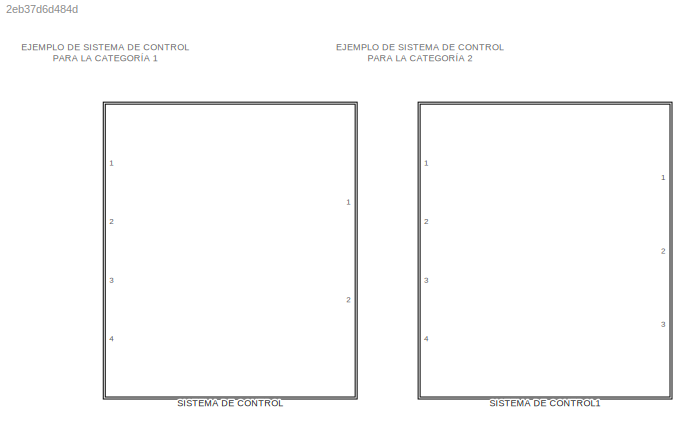
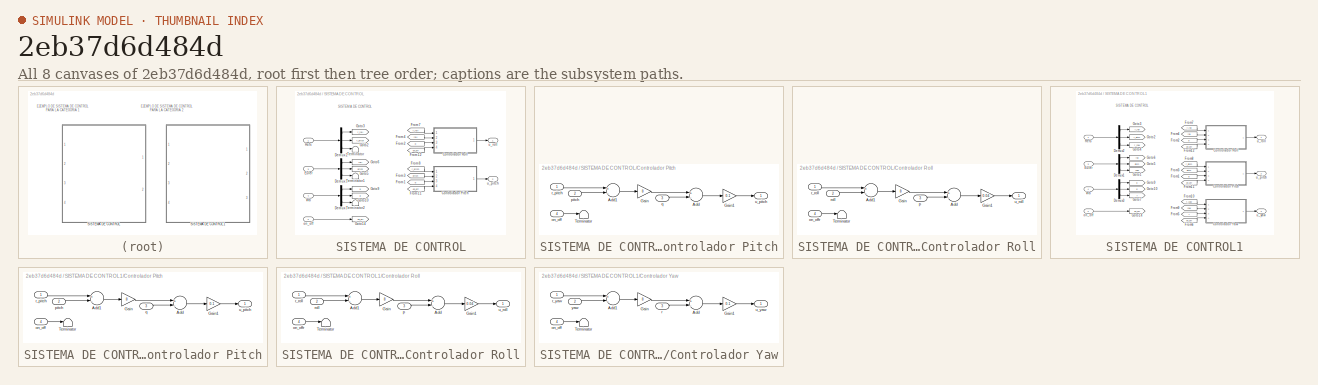
[diagram: thumbnail index - all 8 canvases of the model, root first then tree order]
MODEL slx_2eb37d6d484d
KIND model
CONFIG AbsTol = auto
CONFIG EnableMultiTasking = off
CONFIG FixedStep = auto
CONFIG MaxStep = auto
CONFIG MinStep = auto
CONFIG RelTol = 1e-3
CONFIG SampleTimeConstraint = Unconstrained
CONFIG Solver = VariableStepAuto
CONFIG SolverName = VariableStepAuto
CONFIG StartTime = 0.0
CONFIG StopTime = 10.0
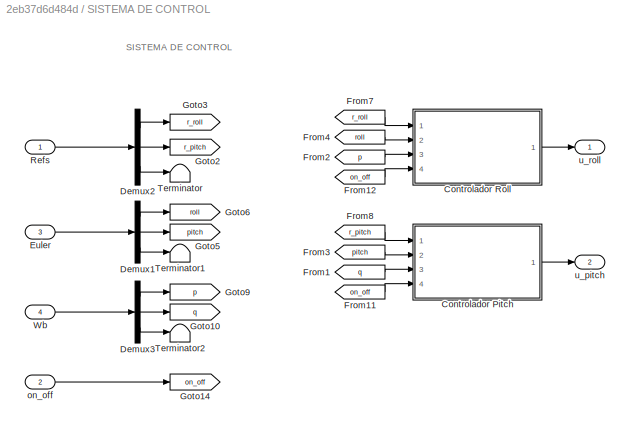
BLOCK [SubSystem] SISTEMA DE CONTROL
  Ports = [4, 2]
  RequestExecContextInheritance = off
BLOCK [SubSystem] SISTEMA DE CONTROL/Controlador Pitch
  Ports = [4, 1]
  RequestExecContextInheritance = off
BLOCK [Sum] SISTEMA DE CONTROL/Controlador Pitch/Add
  InputSameDT = off
  Inputs = +-
  OutDataTypeStr = Inherit: Inherit via internal rule
  Ports = [2, 1]
  SaturateOnIntegerOverflow = off
BLOCK [Sum] SISTEMA DE CONTROL/Controlador Pitch/Add1
  InputSameDT = off
  Inputs = +-
  OutDataTypeStr = Inherit: Inherit via internal rule
  Ports = [2, 1]
  SaturateOnIntegerOverflow = off
BLOCK [Gain] SISTEMA DE CONTROL/Controlador Pitch/Gain
  Gain = 8
  OutDataTypeStr = Inherit: Inherit via internal rule
  ParamDataTypeStr = Inherit: Inherit via internal rule
  SaturateOnIntegerOverflow = off
BLOCK [Gain] SISTEMA DE CONTROL/Controlador Pitch/Gain1
  Gain = 0.1
  OutDataTypeStr = Inherit: Inherit via internal rule
  ParamDataTypeStr = Inherit: Inherit via internal rule
  SaturateOnIntegerOverflow = off
BLOCK [Terminator] SISTEMA DE CONTROL/Controlador Pitch/Terminator
BLOCK [Inport] SISTEMA DE CONTROL/Controlador Pitch/on_off
  IconDisplay = Port number
  Port = 4
BLOCK [Inport] SISTEMA DE CONTROL/Controlador Pitch/pitch
  IconDisplay = Port number
  Port = 2
BLOCK [Inport] SISTEMA DE CONTROL/Controlador Pitch/q
  IconDisplay = Port number
  Port = 3
BLOCK [Inport] SISTEMA DE CONTROL/Controlador Pitch/r_pitch
  IconDisplay = Port number
BLOCK [Outport] SISTEMA DE CONTROL/Controlador Pitch/u_pitch
  IconDisplay = Port number
BLOCK [SubSystem] SISTEMA DE CONTROL/Controlador Roll
  Ports = [4, 1]
  RequestExecContextInheritance = off
BLOCK [Sum] SISTEMA DE CONTROL/Controlador Roll/Add
  InputSameDT = off
  Inputs = +-
  OutDataTypeStr = Inherit: Inherit via internal rule
  Ports = [2, 1]
  SaturateOnIntegerOverflow = off
BLOCK [Sum] SISTEMA DE CONTROL/Controlador Roll/Add1
  InputSameDT = off
  Inputs = +-
  OutDataTypeStr = Inherit: Inherit via internal rule
  Ports = [2, 1]
  SaturateOnIntegerOverflow = off
BLOCK [Gain] SISTEMA DE CONTROL/Controlador Roll/Gain
  Gain = 8
  OutDataTypeStr = Inherit: Inherit via internal rule
  ParamDataTypeStr = Inherit: Inherit via internal rule
  SaturateOnIntegerOverflow = off
BLOCK [Gain] SISTEMA DE CONTROL/Controlador Roll/Gain1
  Gain = 0.04
  OutDataTypeStr = Inherit: Inherit via internal rule
  ParamDataTypeStr = Inherit: Inherit via internal rule
  SaturateOnIntegerOverflow = off
BLOCK [Terminator] SISTEMA DE CONTROL/Controlador Roll/Terminator
BLOCK [Inport] SISTEMA DE CONTROL/Controlador Roll/on_offr
  IconDisplay = Port number
  Port = 4
BLOCK [Inport] SISTEMA DE CONTROL/Controlador Roll/p
  IconDisplay = Port number
  Port = 3
BLOCK [Inport] SISTEMA DE CONTROL/Controlador Roll/r_roll
  IconDisplay = Port number
BLOCK [Inport] SISTEMA DE CONTROL/Controlador Roll/roll
  IconDisplay = Port number
  Port = 2
BLOCK [Outport] SISTEMA DE CONTROL/Controlador Roll/u_roll
  IconDisplay = Port number
BLOCK [Demux] SISTEMA DE CONTROL/Demux1
  DisplayOption = bar
  Outputs = 3
  Ports = [1, 3]
BLOCK [Demux] SISTEMA DE CONTROL/Demux2
  DisplayOption = bar
  Outputs = 3
  Ports = [1, 3]
BLOCK [Demux] SISTEMA DE CONTROL/Demux3
  DisplayOption = bar
  Outputs = 3
  Ports = [1, 3]
BLOCK [Inport] SISTEMA DE CONTROL/Euler
  IconDisplay = Port number
  Port = 3
BLOCK [From] SISTEMA DE CONTROL/From1
  GotoTag = q
BLOCK [From] SISTEMA DE CONTROL/From11
  GotoTag = on_off
BLOCK [From] SISTEMA DE CONTROL/From12
  GotoTag = on_off
BLOCK [From] SISTEMA DE CONTROL/From2
  GotoTag = p
BLOCK [From] SISTEMA DE CONTROL/From3
  GotoTag = pitch
BLOCK [From] SISTEMA DE CONTROL/From4
  GotoTag = roll
BLOCK [From] SISTEMA DE CONTROL/From7
  GotoTag = r_roll
BLOCK [From] SISTEMA DE CONTROL/From8
  GotoTag = r_pitch
BLOCK [Goto] SISTEMA DE CONTROL/Goto10
  GotoTag = q
BLOCK [Goto] SISTEMA DE CONTROL/Goto14
  GotoTag = on_off
BLOCK [Goto] SISTEMA DE CONTROL/Goto2
  GotoTag = r_pitch
BLOCK [Goto] SISTEMA DE CONTROL/Goto3
  GotoTag = r_roll
BLOCK [Goto] SISTEMA DE CONTROL/Goto5
  GotoTag = pitch
BLOCK [Goto] SISTEMA DE CONTROL/Goto6
  GotoTag = roll
BLOCK [Goto] SISTEMA DE CONTROL/Goto9
  GotoTag = p
BLOCK [Inport] SISTEMA DE CONTROL/Refs
  IconDisplay = Port number
BLOCK [Terminator] SISTEMA DE CONTROL/Terminator
BLOCK [Terminator] SISTEMA DE CONTROL/Terminator1
BLOCK [Terminator] SISTEMA DE CONTROL/Terminator2
BLOCK [Inport] SISTEMA DE CONTROL/Wb
  IconDisplay = Port number
  Port = 4
BLOCK [Inport] SISTEMA DE CONTROL/on_off
  IconDisplay = Port number
  Port = 2
BLOCK [Outport] SISTEMA DE CONTROL/u_pitch
  IconDisplay = Port number
  Port = 2
BLOCK [Outport] SISTEMA DE CONTROL/u_roll
  IconDisplay = Port number
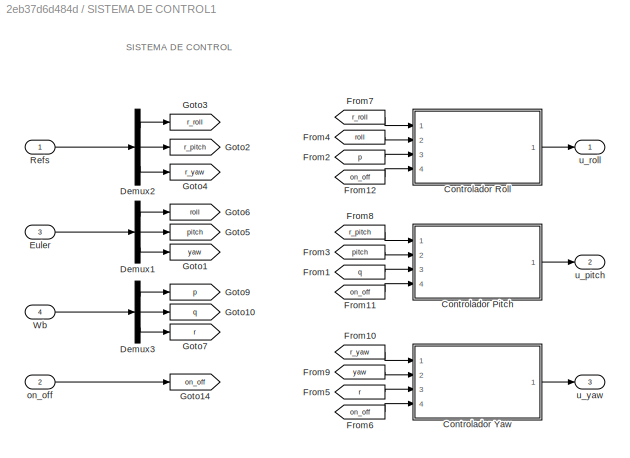
BLOCK [SubSystem] SISTEMA DE CONTROL1
  Ports = [4, 3]
  RequestExecContextInheritance = off
BLOCK [SubSystem] SISTEMA DE CONTROL1/Controlador Pitch
  Ports = [4, 1]
  RequestExecContextInheritance = off
BLOCK [Sum] SISTEMA DE CONTROL1/Controlador Pitch/Add
  InputSameDT = off
  Inputs = +-
  OutDataTypeStr = Inherit: Inherit via internal rule
  Ports = [2, 1]
  SaturateOnIntegerOverflow = off
BLOCK [Sum] SISTEMA DE CONTROL1/Controlador Pitch/Add1
  InputSameDT = off
  Inputs = +-
  OutDataTypeStr = Inherit: Inherit via internal rule
  Ports = [2, 1]
  SaturateOnIntegerOverflow = off
BLOCK [Gain] SISTEMA DE CONTROL1/Controlador Pitch/Gain
  Gain = 8
  OutDataTypeStr = Inherit: Inherit via internal rule
  ParamDataTypeStr = Inherit: Inherit via internal rule
  SaturateOnIntegerOverflow = off
BLOCK [Gain] SISTEMA DE CONTROL1/Controlador Pitch/Gain1
  Gain = 0.1
  OutDataTypeStr = Inherit: Inherit via internal rule
  ParamDataTypeStr = Inherit: Inherit via internal rule
  SaturateOnIntegerOverflow = off
BLOCK [Terminator] SISTEMA DE CONTROL1/Controlador Pitch/Terminator
BLOCK [Inport] SISTEMA DE CONTROL1/Controlador Pitch/on_off
  IconDisplay = Port number
  Port = 4
BLOCK [Inport] SISTEMA DE CONTROL1/Controlador Pitch/pitch
  IconDisplay = Port number
  Port = 2
BLOCK [Inport] SISTEMA DE CONTROL1/Controlador Pitch/q
  IconDisplay = Port number
  Port = 3
BLOCK [Inport] SISTEMA DE CONTROL1/Controlador Pitch/r_pitch
  IconDisplay = Port number
BLOCK [Outport] SISTEMA DE CONTROL1/Controlador Pitch/u_pitch
  IconDisplay = Port number
BLOCK [SubSystem] SISTEMA DE CONTROL1/Controlador Roll
  Ports = [4, 1]
  RequestExecContextInheritance = off
BLOCK [Sum] SISTEMA DE CONTROL1/Controlador Roll/Add
  InputSameDT = off
  Inputs = +-
  OutDataTypeStr = Inherit: Inherit via internal rule
  Ports = [2, 1]
  SaturateOnIntegerOverflow = off
BLOCK [Sum] SISTEMA DE CONTROL1/Controlador Roll/Add1
  InputSameDT = off
  Inputs = +-
  OutDataTypeStr = Inherit: Inherit via internal rule
  Ports = [2, 1]
  SaturateOnIntegerOverflow = off
BLOCK [Gain] SISTEMA DE CONTROL1/Controlador Roll/Gain
  Gain = 8
  OutDataTypeStr = Inherit: Inherit via internal rule
  ParamDataTypeStr = Inherit: Inherit via internal rule
  SaturateOnIntegerOverflow = off
BLOCK [Gain] SISTEMA DE CONTROL1/Controlador Roll/Gain1
  Gain = 0.04
  OutDataTypeStr = Inherit: Inherit via internal rule
  ParamDataTypeStr = Inherit: Inherit via internal rule
  SaturateOnIntegerOverflow = off
BLOCK [Terminator] SISTEMA DE CONTROL1/Controlador Roll/Terminator
BLOCK [Inport] SISTEMA DE CONTROL1/Controlador Roll/on_offr
  IconDisplay = Port number
  Port = 4
BLOCK [Inport] SISTEMA DE CONTROL1/Controlador Roll/p
  IconDisplay = Port number
  Port = 3
BLOCK [Inport] SISTEMA DE CONTROL1/Controlador Roll/r_roll
  IconDisplay = Port number
BLOCK [Inport] SISTEMA DE CONTROL1/Controlador Roll/roll
  IconDisplay = Port number
  Port = 2
BLOCK [Outport] SISTEMA DE CONTROL1/Controlador Roll/u_roll
  IconDisplay = Port number
BLOCK [SubSystem] SISTEMA DE CONTROL1/Controlador Yaw
  Ports = [4, 1]
  RequestExecContextInheritance = off
BLOCK [Sum] SISTEMA DE CONTROL1/Controlador Yaw/Add
  InputSameDT = off
  Inputs = +-
  OutDataTypeStr = Inherit: Inherit via internal rule
  Ports = [2, 1]
  SaturateOnIntegerOverflow = off
BLOCK [Sum] SISTEMA DE CONTROL1/Controlador Yaw/Add1
  InputSameDT = off
  Inputs = +-
  OutDataTypeStr = Inherit: Inherit via internal rule
  Ports = [2, 1]
  SaturateOnIntegerOverflow = off
BLOCK [Gain] SISTEMA DE CONTROL1/Controlador Yaw/Gain
  Gain = 8
  OutDataTypeStr = Inherit: Inherit via internal rule
  ParamDataTypeStr = Inherit: Inherit via internal rule
  SaturateOnIntegerOverflow = off
BLOCK [Gain] SISTEMA DE CONTROL1/Controlador Yaw/Gain1
  Gain = 0.1
  OutDataTypeStr = Inherit: Inherit via internal rule
  ParamDataTypeStr = Inherit: Inherit via internal rule
  SaturateOnIntegerOverflow = off
BLOCK [Terminator] SISTEMA DE CONTROL1/Controlador Yaw/Terminator
BLOCK [Inport] SISTEMA DE CONTROL1/Controlador Yaw/on_off
  IconDisplay = Port number
  Port = 4
BLOCK [Inport] SISTEMA DE CONTROL1/Controlador Yaw/r
  IconDisplay = Port number
  Port = 3
BLOCK [Inport] SISTEMA DE CONTROL1/Controlador Yaw/r_yaw
  IconDisplay = Port number
BLOCK [Outport] SISTEMA DE CONTROL1/Controlador Yaw/u_yaw
  IconDisplay = Port number
BLOCK [Inport] SISTEMA DE CONTROL1/Controlador Yaw/yaw
  IconDisplay = Port number
  Port = 2
BLOCK [Demux] SISTEMA DE CONTROL1/Demux1
  DisplayOption = bar
  Outputs = 3
  Ports = [1, 3]
BLOCK [Demux] SISTEMA DE CONTROL1/Demux2
  DisplayOption = bar
  Outputs = 3
  Ports = [1, 3]
BLOCK [Demux] SISTEMA DE CONTROL1/Demux3
  DisplayOption = bar
  Outputs = 3
  Ports = [1, 3]
BLOCK [Inport] SISTEMA DE CONTROL1/Euler
  IconDisplay = Port number
  Port = 3
BLOCK [From] SISTEMA DE CONTROL1/From1
  GotoTag = q
BLOCK [From] SISTEMA DE CONTROL1/From10
  GotoTag = r_yaw
BLOCK [From] SISTEMA DE CONTROL1/From11
  GotoTag = on_off
BLOCK [From] SISTEMA DE CONTROL1/From12
  GotoTag = on_off
BLOCK [From] SISTEMA DE CONTROL1/From2
  GotoTag = p
BLOCK [From] SISTEMA DE CONTROL1/From3
  GotoTag = pitch
BLOCK [From] SISTEMA DE CONTROL1/From4
  GotoTag = roll
BLOCK [From] SISTEMA DE CONTROL1/From5
  GotoTag = r
BLOCK [From] SISTEMA DE CONTROL1/From6
  GotoTag = on_off
BLOCK [From] SISTEMA DE CONTROL1/From7
  GotoTag = r_roll
BLOCK [From] SISTEMA DE CONTROL1/From8
  GotoTag = r_pitch
BLOCK [From] SISTEMA DE CONTROL1/From9
  GotoTag = yaw
BLOCK [Goto] SISTEMA DE CONTROL1/Goto1
  GotoTag = yaw
BLOCK [Goto] SISTEMA DE CONTROL1/Goto10
  GotoTag = q
BLOCK [Goto] SISTEMA DE CONTROL1/Goto14
  GotoTag = on_off
BLOCK [Goto] SISTEMA DE CONTROL1/Goto2
  GotoTag = r_pitch
BLOCK [Goto] SISTEMA DE CONTROL1/Goto3
  GotoTag = r_roll
BLOCK [Goto] SISTEMA DE CONTROL1/Goto4
  GotoTag = r_yaw
BLOCK [Goto] SISTEMA DE CONTROL1/Goto5
  GotoTag = pitch
BLOCK [Goto] SISTEMA DE CONTROL1/Goto6
  GotoTag = roll
BLOCK [Goto] SISTEMA DE CONTROL1/Goto7
  GotoTag = r
BLOCK [Goto] SISTEMA DE CONTROL1/Goto9
  GotoTag = p
BLOCK [Inport] SISTEMA DE CONTROL1/Refs
  IconDisplay = Port number
BLOCK [Inport] SISTEMA DE CONTROL1/Wb
  IconDisplay = Port number
  Port = 4
BLOCK [Inport] SISTEMA DE CONTROL1/on_off
  IconDisplay = Port number
  Port = 2
BLOCK [Outport] SISTEMA DE CONTROL1/u_pitch
  IconDisplay = Port number
  Port = 2
BLOCK [Outport] SISTEMA DE CONTROL1/u_roll
  IconDisplay = Port number
BLOCK [Outport] SISTEMA DE CONTROL1/u_yaw
  IconDisplay = Port number
  Port = 3
ANNOTATION (root): EJEMPLO DE SISTEMA DE CONTROL PARA LA CATEGORÍA 1
ANNOTATION (root): EJEMPLO DE SISTEMA DE CONTROL PARA LA CATEGORÍA 2
ANNOTATION SISTEMA DE CONTROL: SISTEMA DE CONTROL
ANNOTATION SISTEMA DE CONTROL1: SISTEMA DE CONTROL
LINE SISTEMA DE CONTROL/Controlador Pitch/Add1:1 -> SISTEMA DE CONTROL/Controlador Pitch/Gain:1
LINE SISTEMA DE CONTROL/Controlador Pitch/Add:1 -> SISTEMA DE CONTROL/Controlador Pitch/Gain1:1
LINE SISTEMA DE CONTROL/Controlador Pitch/Gain1:1 -> SISTEMA DE CONTROL/Controlador Pitch/u_pitch:1
LINE SISTEMA DE CONTROL/Controlador Pitch/Gain:1 -> SISTEMA DE CONTROL/Controlador Pitch/Add:1
LINE SISTEMA DE CONTROL/Controlador Pitch/on_off:1 -> SISTEMA DE CONTROL/Controlador Pitch/Terminator:1
LINE SISTEMA DE CONTROL/Controlador Pitch/pitch:1 -> SISTEMA DE CONTROL/Controlador Pitch/Add1:2
LINE SISTEMA DE CONTROL/Controlador Pitch/q:1 -> SISTEMA DE CONTROL/Controlador Pitch/Add:2
LINE SISTEMA DE CONTROL/Controlador Pitch/r_pitch:1 -> SISTEMA DE CONTROL/Controlador Pitch/Add1:1
LINE SISTEMA DE CONTROL/Controlador Pitch:1 -> SISTEMA DE CONTROL/u_pitch:1
LINE SISTEMA DE CONTROL/Controlador Roll/Add1:1 -> SISTEMA DE CONTROL/Controlador Roll/Gain:1
LINE SISTEMA DE CONTROL/Controlador Roll/Add:1 -> SISTEMA DE CONTROL/Controlador Roll/Gain1:1
LINE SISTEMA DE CONTROL/Controlador Roll/Gain1:1 -> SISTEMA DE CONTROL/Controlador Roll/u_roll:1
LINE SISTEMA DE CONTROL/Controlador Roll/Gain:1 -> SISTEMA DE CONTROL/Controlador Roll/Add:1
LINE SISTEMA DE CONTROL/Controlador Roll/on_offr:1 -> SISTEMA DE CONTROL/Controlador Roll/Terminator:1
LINE SISTEMA DE CONTROL/Controlador Roll/p:1 -> SISTEMA DE CONTROL/Controlador Roll/Add:2
LINE SISTEMA DE CONTROL/Controlador Roll/r_roll:1 -> SISTEMA DE CONTROL/Controlador Roll/Add1:1
LINE SISTEMA DE CONTROL/Controlador Roll/roll:1 -> SISTEMA DE CONTROL/Controlador Roll/Add1:2
LINE SISTEMA DE CONTROL/Controlador Roll:1 -> SISTEMA DE CONTROL/u_roll:1
LINE SISTEMA DE CONTROL/Demux1:1 -> SISTEMA DE CONTROL/Goto6:1
LINE SISTEMA DE CONTROL/Demux1:2 -> SISTEMA DE CONTROL/Goto5:1
LINE SISTEMA DE CONTROL/Demux1:3 -> SISTEMA DE CONTROL/Terminator1:1
LINE SISTEMA DE CONTROL/Demux2:1 -> SISTEMA DE CONTROL/Goto3:1
LINE SISTEMA DE CONTROL/Demux2:2 -> SISTEMA DE CONTROL/Goto2:1
LINE SISTEMA DE CONTROL/Demux2:3 -> SISTEMA DE CONTROL/Terminator:1
LINE SISTEMA DE CONTROL/Demux3:1 -> SISTEMA DE CONTROL/Goto9:1
LINE SISTEMA DE CONTROL/Demux3:2 -> SISTEMA DE CONTROL/Goto10:1
LINE SISTEMA DE CONTROL/Demux3:3 -> SISTEMA DE CONTROL/Terminator2:1
LINE SISTEMA DE CONTROL/Euler:1 -> SISTEMA DE CONTROL/Demux1:1
LINE SISTEMA DE CONTROL/From11:1 -> SISTEMA DE CONTROL/Controlador Pitch:4
LINE SISTEMA DE CONTROL/From12:1 -> SISTEMA DE CONTROL/Controlador Roll:4
LINE SISTEMA DE CONTROL/From1:1 -> SISTEMA DE CONTROL/Controlador Pitch:3
LINE SISTEMA DE CONTROL/From2:1 -> SISTEMA DE CONTROL/Controlador Roll:3
LINE SISTEMA DE CONTROL/From3:1 -> SISTEMA DE CONTROL/Controlador Pitch:2
LINE SISTEMA DE CONTROL/From4:1 -> SISTEMA DE CONTROL/Controlador Roll:2
LINE SISTEMA DE CONTROL/From7:1 -> SISTEMA DE CONTROL/Controlador Roll:1
LINE SISTEMA DE CONTROL/From8:1 -> SISTEMA DE CONTROL/Controlador Pitch:1
LINE SISTEMA DE CONTROL/Refs:1 -> SISTEMA DE CONTROL/Demux2:1
LINE SISTEMA DE CONTROL/Wb:1 -> SISTEMA DE CONTROL/Demux3:1
LINE SISTEMA DE CONTROL/on_off:1 -> SISTEMA DE CONTROL/Goto14:1
LINE SISTEMA DE CONTROL1/Controlador Pitch/Add1:1 -> SISTEMA DE CONTROL1/Controlador Pitch/Gain:1
LINE SISTEMA DE CONTROL1/Controlador Pitch/Add:1 -> SISTEMA DE CONTROL1/Controlador Pitch/Gain1:1
LINE SISTEMA DE CONTROL1/Controlador Pitch/Gain1:1 -> SISTEMA DE CONTROL1/Controlador Pitch/u_pitch:1
LINE SISTEMA DE CONTROL1/Controlador Pitch/Gain:1 -> SISTEMA DE CONTROL1/Controlador Pitch/Add:1
LINE SISTEMA DE CONTROL1/Controlador Pitch/on_off:1 -> SISTEMA DE CONTROL1/Controlador Pitch/Terminator:1
LINE SISTEMA DE CONTROL1/Controlador Pitch/pitch:1 -> SISTEMA DE CONTROL1/Controlador Pitch/Add1:2
LINE SISTEMA DE CONTROL1/Controlador Pitch/q:1 -> SISTEMA DE CONTROL1/Controlador Pitch/Add:2
LINE SISTEMA DE CONTROL1/Controlador Pitch/r_pitch:1 -> SISTEMA DE CONTROL1/Controlador Pitch/Add1:1
LINE SISTEMA DE CONTROL1/Controlador Pitch:1 -> SISTEMA DE CONTROL1/u_pitch:1
LINE SISTEMA DE CONTROL1/Controlador Roll/Add1:1 -> SISTEMA DE CONTROL1/Controlador Roll/Gain:1
LINE SISTEMA DE CONTROL1/Controlador Roll/Add:1 -> SISTEMA DE CONTROL1/Controlador Roll/Gain1:1
LINE SISTEMA DE CONTROL1/Controlador Roll/Gain1:1 -> SISTEMA DE CONTROL1/Controlador Roll/u_roll:1
LINE SISTEMA DE CONTROL1/Controlador Roll/Gain:1 -> SISTEMA DE CONTROL1/Controlador Roll/Add:1
LINE SISTEMA DE CONTROL1/Controlador Roll/on_offr:1 -> SISTEMA DE CONTROL1/Controlador Roll/Terminator:1
LINE SISTEMA DE CONTROL1/Controlador Roll/p:1 -> SISTEMA DE CONTROL1/Controlador Roll/Add:2
LINE SISTEMA DE CONTROL1/Controlador Roll/r_roll:1 -> SISTEMA DE CONTROL1/Controlador Roll/Add1:1
LINE SISTEMA DE CONTROL1/Controlador Roll/roll:1 -> SISTEMA DE CONTROL1/Controlador Roll/Add1:2
LINE SISTEMA DE CONTROL1/Controlador Roll:1 -> SISTEMA DE CONTROL1/u_roll:1
LINE SISTEMA DE CONTROL1/Controlador Yaw/Add1:1 -> SISTEMA DE CONTROL1/Controlador Yaw/Gain:1
LINE SISTEMA DE CONTROL1/Controlador Yaw/Add:1 -> SISTEMA DE CONTROL1/Controlador Yaw/Gain1:1
LINE SISTEMA DE CONTROL1/Controlador Yaw/Gain1:1 -> SISTEMA DE CONTROL1/Controlador Yaw/u_yaw:1
LINE SISTEMA DE CONTROL1/Controlador Yaw/Gain:1 -> SISTEMA DE CONTROL1/Controlador Yaw/Add:1
LINE SISTEMA DE CONTROL1/Controlador Yaw/on_off:1 -> SISTEMA DE CONTROL1/Controlador Yaw/Terminator:1
LINE SISTEMA DE CONTROL1/Controlador Yaw/r:1 -> SISTEMA DE CONTROL1/Controlador Yaw/Add:2
LINE SISTEMA DE CONTROL1/Controlador Yaw/r_yaw:1 -> SISTEMA DE CONTROL1/Controlador Yaw/Add1:1
LINE SISTEMA DE CONTROL1/Controlador Yaw/yaw:1 -> SISTEMA DE CONTROL1/Controlador Yaw/Add1:2
LINE SISTEMA DE CONTROL1/Controlador Yaw:1 -> SISTEMA DE CONTROL1/u_yaw:1
LINE SISTEMA DE CONTROL1/Demux1:1 -> SISTEMA DE CONTROL1/Goto6:1
LINE SISTEMA DE CONTROL1/Demux1:2 -> SISTEMA DE CONTROL1/Goto5:1
LINE SISTEMA DE CONTROL1/Demux1:3 -> SISTEMA DE CONTROL1/Goto1:1
LINE SISTEMA DE CONTROL1/Demux2:1 -> SISTEMA DE CONTROL1/Goto3:1
LINE SISTEMA DE CONTROL1/Demux2:2 -> SISTEMA DE CONTROL1/Goto2:1
LINE SISTEMA DE CONTROL1/Demux2:3 -> SISTEMA DE CONTROL1/Goto4:1
LINE SISTEMA DE CONTROL1/Demux3:1 -> SISTEMA DE CONTROL1/Goto9:1
LINE SISTEMA DE CONTROL1/Demux3:2 -> SISTEMA DE CONTROL1/Goto10:1
LINE SISTEMA DE CONTROL1/Demux3:3 -> SISTEMA DE CONTROL1/Goto7:1
LINE SISTEMA DE CONTROL1/Euler:1 -> SISTEMA DE CONTROL1/Demux1:1
LINE SISTEMA DE CONTROL1/From10:1 -> SISTEMA DE CONTROL1/Controlador Yaw:1
LINE SISTEMA DE CONTROL1/From11:1 -> SISTEMA DE CONTROL1/Controlador Pitch:4
LINE SISTEMA DE CONTROL1/From12:1 -> SISTEMA DE CONTROL1/Controlador Roll:4
LINE SISTEMA DE CONTROL1/From1:1 -> SISTEMA DE CONTROL1/Controlador Pitch:3
LINE SISTEMA DE CONTROL1/From2:1 -> SISTEMA DE CONTROL1/Controlador Roll:3
LINE SISTEMA DE CONTROL1/From3:1 -> SISTEMA DE CONTROL1/Controlador Pitch:2
LINE SISTEMA DE CONTROL1/From4:1 -> SISTEMA DE CONTROL1/Controlador Roll:2
LINE SISTEMA DE CONTROL1/From5:1 -> SISTEMA DE CONTROL1/Controlador Yaw:3
LINE SISTEMA DE CONTROL1/From6:1 -> SISTEMA DE CONTROL1/Controlador Yaw:4
LINE SISTEMA DE CONTROL1/From7:1 -> SISTEMA DE CONTROL1/Controlador Roll:1
LINE SISTEMA DE CONTROL1/From8:1 -> SISTEMA DE CONTROL1/Controlador Pitch:1
LINE SISTEMA DE CONTROL1/From9:1 -> SISTEMA DE CONTROL1/Controlador Yaw:2
LINE SISTEMA DE CONTROL1/Refs:1 -> SISTEMA DE CONTROL1/Demux2:1
LINE SISTEMA DE CONTROL1/Wb:1 -> SISTEMA DE CONTROL1/Demux3:1
LINE SISTEMA DE CONTROL1/on_off:1 -> SISTEMA DE CONTROL1/Goto14:1
